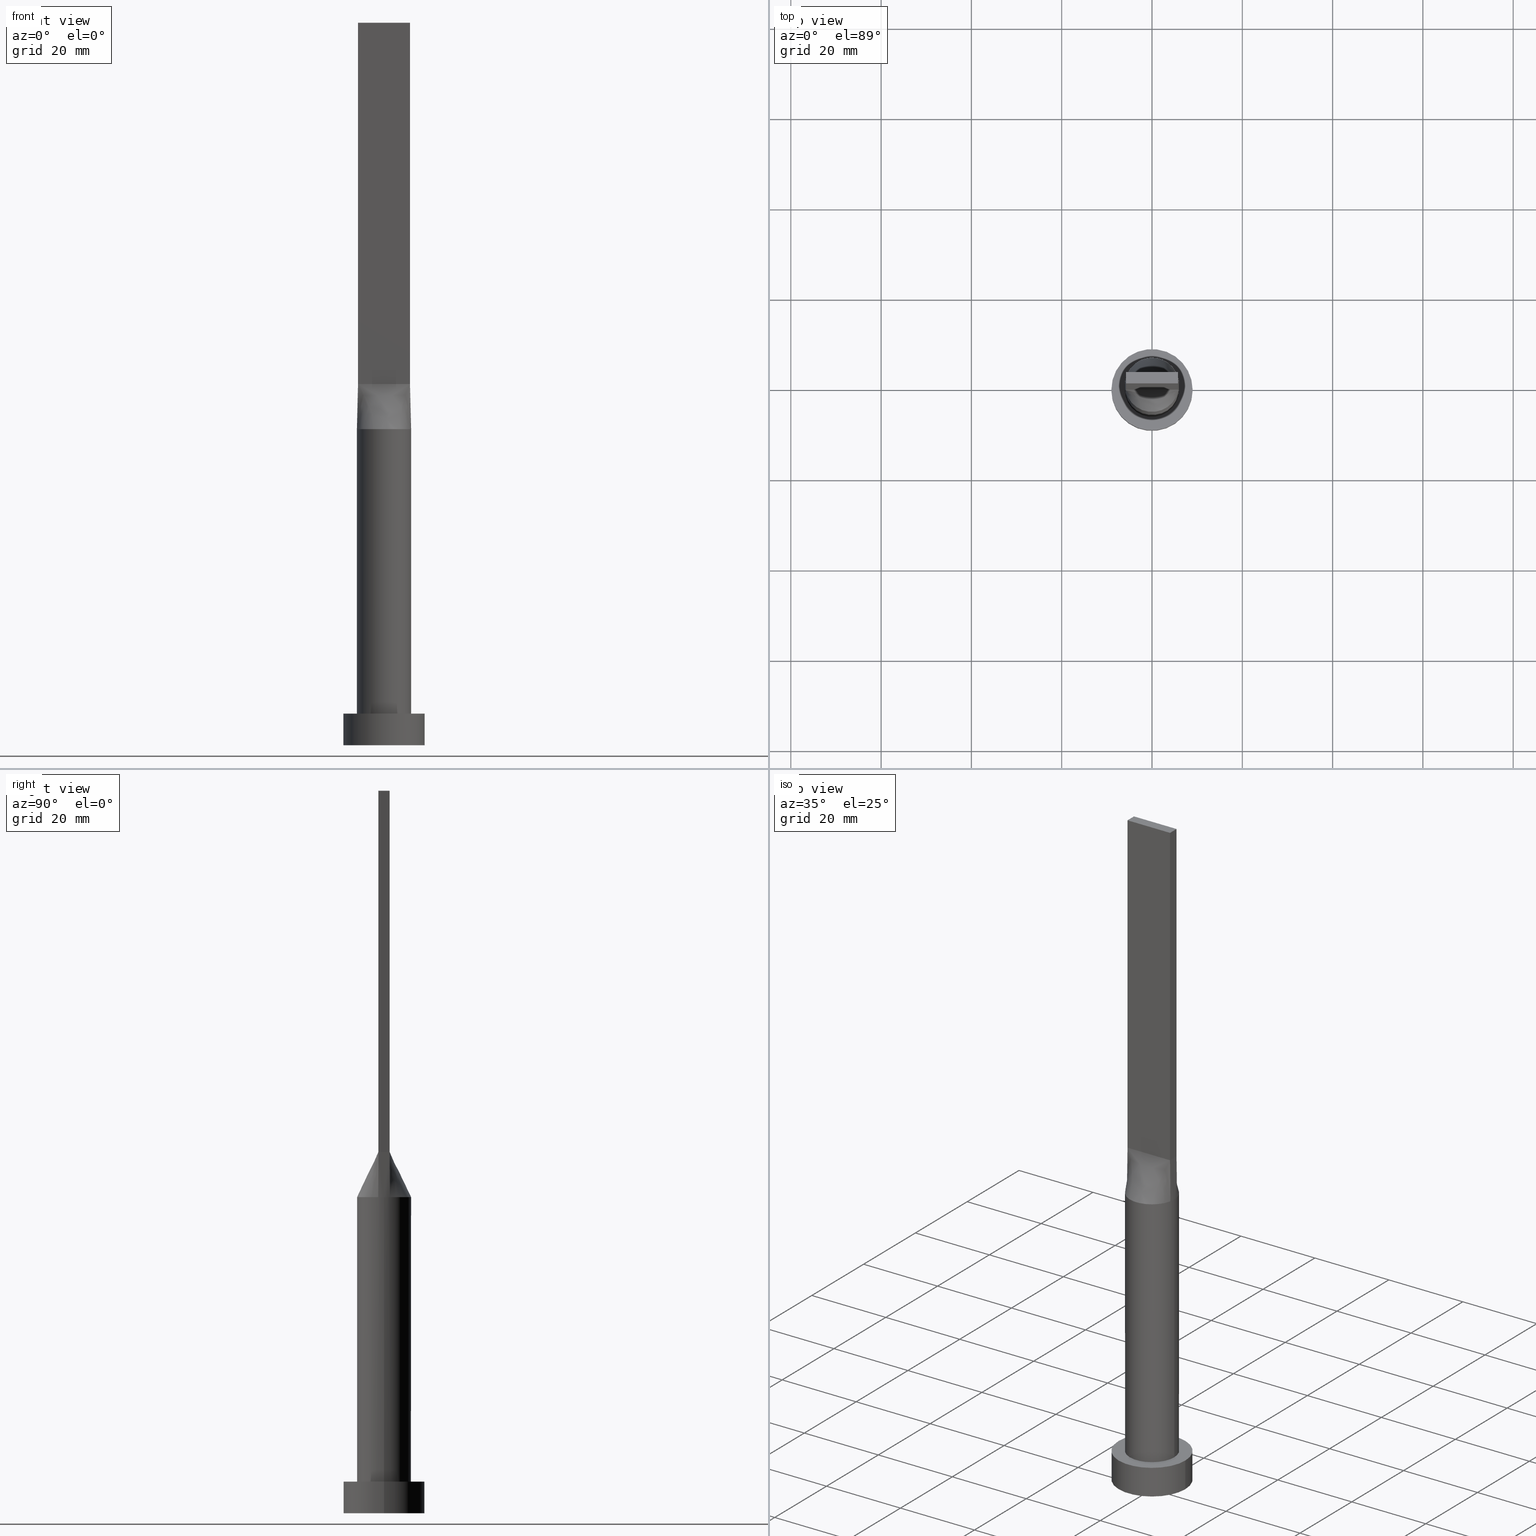
[diagram: canonical four-view strip — front | top / right | iso, engineering-drawing reading convention]
A machine part, canonical four-view strip (front | top / right | iso — engineering-drawing reading convention). The complete STEP part file that produces these views, byte-faithful:
ISO-10303-21;
HEADER;
FILE_DESCRIPTION (( 'STEP AP203' ),
    '1' );
FILE_NAME ('f8be.STEP',
    '2023-02-13T08:50:58',
    ( '' ),
    ( '' ),
    'SwSTEP 2.0',
    'SolidWorks 2019',
    '' );
FILE_SCHEMA (( 'CONFIG_CONTROL_DESIGN' ));
ENDSEC;

DATA;
#1 = EDGE_LOOP ( 'NONE', ( #382, #360, #352, #444, #464 ) ) ;
#2 = CARTESIAN_POINT ( 'NONE',  ( 1.197916666666666075, -1.249999999999999778, 79.99999999999998579 ) ) ;
#3 = CC_DESIGN_APPROVAL ( #32, ( #346 ) ) ;
#4 = FACE_OUTER_BOUND ( 'NONE', #390, .T. ) ;
#5 = CARTESIAN_POINT ( 'NONE',  ( -3.660567483996338911, -4.804269179125217448, 70.00000000000001421 ) ) ;
#6 = CC_DESIGN_DATE_AND_TIME_ASSIGNMENT ( #156, #281, ( #43 ) ) ;
#7 = DIRECTION ( 'NONE',  ( -0.01130506171853812650, -0.002457622112725682973, -0.9999330755971076456 ) ) ;
#8 = APPROVAL_DATE_TIME ( #377, #121 ) ;
#9 = PLANE ( 'NONE',  #463 ) ;
#10 = DIRECTION ( 'NONE',  ( 0.000000000000000000, -1.000000000000000000, 0.000000000000000000 ) ) ;
#11 = CALENDAR_DATE ( 2023, 13, 2 ) ;
#12 = DIRECTION ( 'NONE',  ( 0.01130506171853803803, -0.002457622112725964866, 0.9999330755971076456 ) ) ;
#13 = DIRECTION ( 'NONE',  ( 1.000000000000000000, 0.000000000000000000, 0.000000000000000000 ) ) ;
#14 = VECTOR ( 'NONE', #171, 1000.000000000000000 ) ;
#15 = DATE_AND_TIME ( #579, #265 ) ;
#16 = CARTESIAN_POINT ( 'NONE',  ( -1.966519853258819506, -5.681792876789066860, 70.00000000000002842 ) ) ;
#17 = ADVANCED_FACE ( 'NONE', ( #239 ), #372, .T. ) ;
#18 = ORIENTED_EDGE ( 'NONE', *, *, #231, .T. ) ;
#19 = DIRECTION ( 'NONE',  ( 0.000000000000000000, -0.000000000000000000, -1.000000000000000000 ) ) ;
#20 = PERSON_AND_ORGANIZATION ( #209, #553 ) ;
#21 = CARTESIAN_POINT ( 'NONE',  ( 5.750000000000000000, 1.250000000000000222, 80.00000000000000000 ) ) ;
#22 = ORIENTED_EDGE ( 'NONE', *, *, #450, .T. ) ;
#23 = CARTESIAN_POINT ( 'NONE',  ( -5.750000000000000000, 0.4166666666666722363, 79.99999999999998579 ) ) ;
#24 = CARTESIAN_POINT ( 'NONE',  ( -1.197916666666668739, 1.250000000000000222, 80.00000000000000000 ) ) ;
#25 = VERTEX_POINT ( 'NONE', #97 ) ;
#26 = DIRECTION ( 'NONE',  ( -0.000000000000000000, -0.000000000000000000, -1.000000000000000000 ) ) ;
#27 = CARTESIAN_POINT ( 'NONE',  ( 1.916666666666664076, 1.250000000000000222, 79.99999999999998579 ) ) ;
#28 = DIRECTION ( 'NONE',  ( 1.000000000000000000, 0.000000000000000000, 0.000000000000000000 ) ) ;
#29 = CARTESIAN_POINT ( 'NONE',  ( 5.863058183536806744, 1.274577865986262104, 70.00000000000000000 ) ) ;
#30 = VERTEX_POINT ( 'NONE', #105 ) ;
#31 = DIRECTION ( 'NONE',  ( -1.000000000000000000, 5.656706986880892860E-17, 0.000000000000000000 ) ) ;
#32 = APPROVAL ( #160, 'NEUR�EN�' ) ;
#33 = CARTESIAN_POINT ( 'NONE',  ( -0.2395833333333362847, 1.250000000000000222, 80.00000000000000000 ) ) ;
#34 = EDGE_LOOP ( 'NONE', ( #143, #356 ) ) ;
#35 = CARTESIAN_POINT ( 'NONE',  ( 5.750000000000000000, -1.249999999999999778, 160.0000000000000000 ) ) ;
#36 = VECTOR ( 'NONE', #10, 1000.000000000000000 ) ;
#37 = CARTESIAN_POINT ( 'NONE',  ( 3.660567483996337579, 4.804269179125218336, 70.00000000000000000 ) ) ;
#38 = CIRCLE ( 'NONE', #86, 6.000000000000000888 ) ;
#39 = VERTEX_POINT ( 'NONE', #277 ) ;
#40 = EDGE_CURVE ( 'NONE', #205, #430, #507, .T. ) ;
#41 = CARTESIAN_POINT ( 'NONE',  ( 0.000000000000000000, 0.000000000000000000, 7.000000000000000000 ) ) ;
#42 = DIRECTION ( 'NONE',  ( -0.000000000000000000, -0.000000000000000000, -1.000000000000000000 ) ) ;
#43 = PRODUCT_DEFINITION ( 'NEZN�M�', '', #443, #92 ) ;
#44 = ORIENTED_EDGE ( 'NONE', *, *, #118, .T. ) ;
#45 =( NAMED_UNIT ( * ) SI_UNIT ( $, .STERADIAN. ) SOLID_ANGLE_UNIT ( ) );
#46 = DIRECTION ( 'NONE',  ( -1.000000000000000000, 0.000000000000000000, 0.000000000000000000 ) ) ;
#47 = EDGE_LOOP ( 'NONE', ( #166, #367, #440, #488 ) ) ;
#48 = EDGE_CURVE ( 'NONE', #227, #479, #234, .T. ) ;
#49 = LINE ( 'NONE', #354, #101 ) ;
#50 = ORIENTED_EDGE ( 'NONE', *, *, #450, .F. ) ;
#51 = VECTOR ( 'NONE', #546, 1000.000000000000114 ) ;
#52 = CARTESIAN_POINT ( 'NONE',  ( 0.8058840496048923496, -5.959001506938069070, 70.00000000000000000 ) ) ;
#53 = DIRECTION ( 'NONE',  ( 1.000000000000000000, 0.000000000000000000, 0.000000000000000000 ) ) ;
#54 = VECTOR ( 'NONE', #258, 1000.000000000000000 ) ;
#55 = COORDINATED_UNIVERSAL_TIME_OFFSET ( 1, 0, .AHEAD. ) ;
#56 = CARTESIAN_POINT ( 'NONE',  ( 3.660567483996338023, -4.804269179125219225, 70.00000000000001421 ) ) ;
#57 = FACE_OUTER_BOUND ( 'NONE', #435, .T. ) ;
#58 = CARTESIAN_POINT ( 'NONE',  ( 0.000000000000000000, 0.000000000000000000, 0.000000000000000000 ) ) ;
#59 = CARTESIAN_POINT ( 'NONE',  ( 1.587717880441006368, -5.799853445840308375, 69.99999999999998579 ) ) ;
#60 = CARTESIAN_POINT ( 'NONE',  ( 6.000000000000000888, -0.4297636735037126954, 69.99999999999998579 ) ) ;
#61 = EDGE_CURVE ( 'NONE', #340, #577, #466, .T. ) ;
#62 = CARTESIAN_POINT ( 'NONE',  ( 0.4029827085191214908, -6.000000000000000888, 70.00000000000000000 ) ) ;
#63 = FACE_OUTER_BOUND ( 'NONE', #414, .T. ) ;
#64 = COORDINATED_UNIVERSAL_TIME_OFFSET ( 1, 0, .AHEAD. ) ;
#65 = DIRECTION ( 'NONE',  ( 0.000000000000000000, 0.000000000000000000, 1.000000000000000000 ) ) ;
#66 = EDGE_LOOP ( 'NONE', ( #593, #77, #50, #461 ) ) ;
#67 = DIRECTION ( 'NONE',  ( 1.000000000000000000, 0.000000000000000000, -0.000000000000000000 ) ) ;
#68 = APPROVAL_DATE_TIME ( #284, #32 ) ;
#69 = FACE_OUTER_BOUND ( 'NONE', #473, .T. ) ;
#70 = ADVANCED_BREP_SHAPE_REPRESENTATION ( 'f8be', ( #321, #386 ), #484 ) ;
#71 = CARTESIAN_POINT ( 'NONE',  ( 1.587717880441007479, 5.799853445840305710, 69.99999999999998579 ) ) ;
#72 = CARTESIAN_POINT ( 'NONE',  ( 9.000000000000000000, 1.102182119232617714E-15, 7.000000000000000000 ) ) ;
#73 = CARTESIAN_POINT ( 'NONE',  ( 5.586898165904734093, 2.266054396544147309, 70.00000000000000000 ) ) ;
#74 = ORIENTED_EDGE ( 'NONE', *, *, #308, .F. ) ;
#75 = LINE ( 'NONE', #72, #54 ) ;
#76 = DIRECTION ( 'NONE',  ( 0.000000000000000000, -1.000000000000000000, 0.000000000000000000 ) ) ;
#77 = ORIENTED_EDGE ( 'NONE', *, *, #48, .T. ) ;
#78 = CARTESIAN_POINT ( 'NONE',  ( 5.750000000000000000, -1.249999999999999778, 160.0000000000000000 ) ) ;
#79 = LINE ( 'NONE', #261, #413 ) ;
#80 = ADVANCED_FACE ( 'NONE', ( #373 ), #9, .F. ) ;
#81 = AXIS2_PLACEMENT_3D ( 'NONE', #172, #126, #342 ) ;
#82 = CARTESIAN_POINT ( 'NONE',  ( -5.750000000000000000, 1.250000000000000222, 160.0000000000000000 ) ) ;
#83 = EDGE_CURVE ( 'NONE', #558, #447, #184, .T. ) ;
#84 = B_SPLINE_CURVE_WITH_KNOTS ( 'NONE', 3,
 ( #454, #469, #307, #395, #185, #37, #136, #511, #547, #85, #589, #176, #598, #224, #549, #351, #319, #266, #347, #409, #401, #130 ),
 .UNSPECIFIED., .F., .F.,
 ( 4, 2, 2, 2, 2, 2, 2, 2, 2, 2, 4 ),
 ( 0.000000000000000000, 0.1249999999999999722, 0.2499999999999999445, 0.3749999999999999445, 0.4374999999999999445, 0.4999999999999998890, 0.5624999999999998890, 0.6249999999999998890, 0.7499999999999997780, 0.8749999999999998890, 1.000000000000000000 ),
 .UNSPECIFIED. ) ;
#85 = CARTESIAN_POINT ( 'NONE',  ( 0.8058840496048939039, 5.959001506938069070, 70.00000000000001421 ) ) ;
#86 = AXIS2_PLACEMENT_3D ( 'NONE', #591, #343, #28 ) ;
#87 = ORIENTED_EDGE ( 'NONE', *, *, #557, .T. ) ;
#88 = PLANE ( 'NONE',  #599 ) ;
#89 = ORIENTED_EDGE ( 'NONE', *, *, #534, .F. ) ;
#90 = ADVANCED_FACE ( 'NONE', ( #538 ), #165, .T. ) ;
#91 = CARTESIAN_POINT ( 'NONE',  ( -9.000000000000000000, 0.000000000000000000, 7.000000000000000000 ) ) ;
#92 = DESIGN_CONTEXT ( 'detailed design', #138, 'design' ) ;
#93 = ORIENTED_EDGE ( 'NONE', *, *, #231, .F. ) ;
#94 = ADVANCED_FACE ( 'NONE', ( #69 ), #330, .T. ) ;
#95 = AXIS2_PLACEMENT_3D ( 'NONE', #149, #485, #109 ) ;
#96 = CARTESIAN_POINT ( 'NONE',  ( -0.9583333333333331483, -1.249999999999999334, 79.99999999999998579 ) ) ;
#97 = CARTESIAN_POINT ( 'NONE',  ( 6.000000000000000888, 6.923844231069229210E-17, 70.00000000000000000 ) ) ;
#98 = CARTESIAN_POINT ( 'NONE',  ( 5.863058183536806744, 1.274577865986262326, 70.00000000000000000 ) ) ;
#99 = VECTOR ( 'NONE', #42, 1000.000000000000000 ) ;
#100 = CARTESIAN_POINT ( 'NONE',  ( -5.038190104264876013, -3.311355329404291670, 70.00000000000002842 ) ) ;
#101 = VECTOR ( 'NONE', #552, 1000.000000000000000 ) ;
#102 = ORIENTED_EDGE ( 'NONE', *, *, #61, .T. ) ;
#103 = CARTESIAN_POINT ( 'NONE',  ( 5.863058183536806744, -1.274577865986263436, 70.00000000000000000 ) ) ;
#104 = COORDINATED_UNIVERSAL_TIME_OFFSET ( 1, 0, .AHEAD. ) ;
#105 = CARTESIAN_POINT ( 'NONE',  ( 5.750000000000000000, 1.250000000000000222, 80.00000000000000000 ) ) ;
#106 = CARTESIAN_POINT ( 'NONE',  ( 5.750000000000000000, -0.8333333333333317050, 79.99999999999998579 ) ) ;
#107 = EDGE_CURVE ( 'NONE', #430, #205, #252, .T. ) ;
#108 = CARTESIAN_POINT ( 'NONE',  ( -1.197916666666666075, -1.249999999999999334, 79.99999999999998579 ) ) ;
#109 = DIRECTION ( 'NONE',  ( 1.000000000000000000, 0.000000000000000000, 0.000000000000000000 ) ) ;
#110 = APPROVAL_STATUS ( 'not_yet_approved' ) ;
#111 = CLOSED_SHELL ( 'NONE', ( #273, #129, #467, #517, #80, #94, #17, #415, #439, #90, #329, #475, #515, #255, #375 ) ) ;
#112 = CARTESIAN_POINT ( 'NONE',  ( 4.659826596530313836, 3.842755878357678068, 70.00000000000001421 ) ) ;
#113 = CARTESIAN_POINT ( 'NONE',  ( -5.750000000000000000, 1.250000000000000222, 80.00000000000000000 ) ) ;
#114 = DATE_TIME_ROLE ( 'classification_date' ) ;
#115 = CARTESIAN_POINT ( 'NONE',  ( -1.916666666666668073, 1.250000000000000222, 80.00000000000000000 ) ) ;
#116 = ORIENTED_EDGE ( 'NONE', *, *, #107, .T. ) ;
#117 = CARTESIAN_POINT ( 'NONE',  ( 9.000000000000000000, 1.102182119232617714E-15, 0.000000000000000000 ) ) ;
#118 = EDGE_CURVE ( 'NONE', #479, #597, #204, .T. ) ;
#119 = CARTESIAN_POINT ( 'NONE',  ( -3.354166666666666963, 1.250000000000000222, 79.99999999999998579 ) ) ;
#120 = DIRECTION ( 'NONE',  ( -1.000000000000000000, 0.000000000000000000, 0.000000000000000000 ) ) ;
#121 = APPROVAL ( #110, 'NEUR�EN�' ) ;
#122 = CARTESIAN_POINT ( 'NONE',  ( 0.9583333333333305948, 1.250000000000000222, 79.99999999999998579 ) ) ;
#123 = ORIENTED_EDGE ( 'NONE', *, *, #288, .F. ) ;
#124 = CARTESIAN_POINT ( 'NONE',  ( 0.000000000000000000, 0.000000000000000000, 0.000000000000000000 ) ) ;
#125 = LOCAL_TIME ( 9, 50, 58.00000000000000000, #323 ) ;
#126 = DIRECTION ( 'NONE',  ( -0.000000000000000000, -0.000000000000000000, -1.000000000000000000 ) ) ;
#127 = ORIENTED_EDGE ( 'NONE', *, *, #83, .F. ) ;
#128 = DIRECTION ( 'NONE',  ( 1.000000000000000000, -9.769962616701377556E-15, 0.000000000000000000 ) ) ;
#129 = ADVANCED_FACE ( 'NONE', ( #161 ), #530, .T. ) ;
#130 = CARTESIAN_POINT ( 'NONE',  ( -5.863058287509749888, 1.274577880478287017, 70.00000000000000000 ) ) ;
#131 = ORIENTED_EDGE ( 'NONE', *, *, #574, .T. ) ;
#132 = CARTESIAN_POINT ( 'NONE',  ( 5.863058287509796074, -1.274577880478293901, 70.00000000000000000 ) ) ;
#133 = CARTESIAN_POINT ( 'NONE',  ( -6.000000000000000888, -3.688698462745542764E-16, 70.00000000000000000 ) ) ;
#134 = VERTEX_POINT ( 'NONE', #98 ) ;
#135 = FACE_OUTER_BOUND ( 'NONE', #402, .T. ) ;
#136 = CARTESIAN_POINT ( 'NONE',  ( 3.037647739454305995, 5.231880992812856235, 70.00000000000001421 ) ) ;
#137 = APPROVAL_PERSON_ORGANIZATION ( #20, #594, #248 ) ;
#138 = APPLICATION_CONTEXT ( 'configuration controlled 3d designs of mechanical parts and assemblies' ) ;
#139 = APPLICATION_PROTOCOL_DEFINITION ( 'international standard', 'config_control_design', 1994, #505 ) ;
#140 = CARTESIAN_POINT ( 'NONE',  ( 5.750000000000000000, -1.249999999999999778, 160.0000000000000000 ) ) ;
#141 = ORIENTED_EDGE ( 'NONE', *, *, #308, .T. ) ;
#142 = CC_DESIGN_PERSON_AND_ORGANIZATION_ASSIGNMENT ( #481, #432, ( #443 ) ) ;
#143 = ORIENTED_EDGE ( 'NONE', *, *, #424, .F. ) ;
#144 = CARTESIAN_POINT ( 'NONE',  ( 3.833333333333331705, -1.249999999999999778, 79.99999999999998579 ) ) ;
#145 = AXIS2_PLACEMENT_3D ( 'NONE', #306, #341, #31 ) ;
#146 = EDGE_CURVE ( 'NONE', #600, #295, #508, .T. ) ;
#147 = CARTESIAN_POINT ( 'NONE',  ( 5.586898165904734093, -2.266054396544146865, 70.00000000000001421 ) ) ;
#148 = CARTESIAN_POINT ( 'NONE',  ( 1.966519853258817729, -5.681792876789067748, 70.00000000000002842 ) ) ;
#149 = CARTESIAN_POINT ( 'NONE',  ( 0.000000000000000000, 0.000000000000000000, 70.00000000000000000 ) ) ;
#150 = DATE_AND_TIME ( #197, #125 ) ;
#151 = CARTESIAN_POINT ( 'NONE',  ( -5.750000000000000000, -1.249999999999999112, 80.00000000000000000 ) ) ;
#152 = AXIS2_PLACEMENT_3D ( 'NONE', #235, #419, #19 ) ;
#153 = EDGE_CURVE ( 'NONE', #134, #227, #84, .T. ) ;
#154 = LOCAL_TIME ( 9, 50, 58.00000000000000000, #64 ) ;
#155 = CARTESIAN_POINT ( 'NONE',  ( -5.806529091768402928, -1.262288932993130386, 75.00000000000001421 ) ) ;
#156 = DATE_AND_TIME ( #524, #580 ) ;
#157 = EDGE_CURVE ( 'NONE', #295, #30, #305, .T. ) ;
#158 = CARTESIAN_POINT ( 'NONE',  ( -1.587717880441008589, -5.799853445840304822, 70.00000000000000000 ) ) ;
#159 = PLANE ( 'NONE',  #152 ) ;
#160 = APPROVAL_STATUS ( 'not_yet_approved' ) ;
#161 = FACE_OUTER_BOUND ( 'NONE', #47, .T. ) ;
#162 = CARTESIAN_POINT ( 'NONE',  ( 5.750000000000000000, 0.4166666666666690721, 79.99999999999998579 ) ) ;
#163 = VECTOR ( 'NONE', #76, 1000.000000000000000 ) ;
#164 = CARTESIAN_POINT ( 'NONE',  ( -4.791666666666666963, 1.250000000000000222, 79.99999999999998579 ) ) ;
#165 = B_SPLINE_SURFACE_WITH_KNOTS ( 'NONE', 3, 1, ( 
 ( #29, #21 ),
 ( #442, #289 ),
 ( #73, #576 ),
 ( #446, #491 ),
 ( #112, #335 ),
 ( #212, #301 ),
 ( #392, #27 ),
 ( #169, #381 ),
 ( #71, #122 ),
 ( #535, #249 ),
 ( #495, #438 ),
 ( #174, #33 ),
 ( #389, #219 ),
 ( #385, #583 ),
 ( #501, #24 ),
 ( #253, #115 ),
 ( #339, #259 ),
 ( #587, #119 ),
 ( #256, #208 ),
 ( #572, #164 ),
 ( #344, #544 ),
 ( #434, #294 ) ),
 .UNSPECIFIED., .F., .F., .F.,
 ( 4, 2, 2, 2, 2, 2, 2, 2, 2, 2, 4 ),
 ( 2, 2 ),
 ( 0.000000000000000000, 0.1249999999999999722, 0.2499999999999999445, 0.3749999999999999445, 0.4374999999999999445, 0.4999999999999998890, 0.5624999999999998890, 0.6249999999999998890, 0.7499999999999997780, 0.8749999999999998890, 1.000000000000000000 ),
 ( 0.000000000000000000, 1.000000000000000000 ),
 .UNSPECIFIED. ) ;
#166 = ORIENTED_EDGE ( 'NONE', *, *, #40, .F. ) ;
#167 = CIRCLE ( 'NONE', #324, 6.000000000000000888 ) ;
#168 = CARTESIAN_POINT ( 'NONE',  ( 5.750000000000000000, -1.249999999999999778, 80.00000000000000000 ) ) ;
#169 = CARTESIAN_POINT ( 'NONE',  ( 1.966519853258819062, 5.681792876789066860, 70.00000000000000000 ) ) ;
#170 = ORIENTED_EDGE ( 'NONE', *, *, #194, .F. ) ;
#171 = DIRECTION ( 'NONE',  ( -1.000000000000000000, -0.000000000000000000, -0.000000000000000000 ) ) ;
#172 = CARTESIAN_POINT ( 'NONE',  ( 0.000000000000000000, 0.000000000000000000, 70.00000000000000000 ) ) ;
#173 = ORIENTED_EDGE ( 'NONE', *, *, #398, .T. ) ;
#174 = CARTESIAN_POINT ( 'NONE',  ( -0.4029827085191223790, 5.999999999999998224, 70.00000000000000000 ) ) ;
#175 = EDGE_CURVE ( 'NONE', #39, #30, #79, .T. ) ;
#176 = CARTESIAN_POINT ( 'NONE',  ( -0.4029827085191223790, 5.999999999999998224, 70.00000000000000000 ) ) ;
#177 = EDGE_LOOP ( 'NONE', ( #44, #315, #74, #250 ) ) ;
#178 = DIRECTION ( 'NONE',  ( 1.000000000000000000, 0.000000000000000000, 0.000000000000000000 ) ) ;
#179 = LINE ( 'NONE', #140, #99 ) ;
#180 = ORIENTED_EDGE ( 'NONE', *, *, #314, .F. ) ;
#181 = CARTESIAN_POINT ( 'NONE',  ( -6.000000000000000888, 0.000000000000000000, 7.000000000000000000 ) ) ;
#182 = DIRECTION ( 'NONE',  ( -0.000000000000000000, -0.000000000000000000, -1.000000000000000000 ) ) ;
#183 = ORIENTED_EDGE ( 'NONE', *, *, #83, .T. ) ;
#184 = CIRCLE ( 'NONE', #531, 6.000000000000000888 ) ;
#185 = CARTESIAN_POINT ( 'NONE',  ( 4.659826596530313836, 3.842755878357678068, 70.00000000000001421 ) ) ;
#186 = ORIENTED_EDGE ( 'NONE', *, *, #40, .T. ) ;
#187 = EDGE_CURVE ( 'NONE', #577, #295, #179, .T. ) ;
#188 = PRODUCT_DEFINITION_SHAPE ( 'NONE', 'NONE',  #43 ) ;
#189 = CARTESIAN_POINT ( 'NONE',  ( -3.354166666666666963, -1.249999999999999112, 79.99999999999998579 ) ) ;
#190 = FACE_OUTER_BOUND ( 'NONE', #269, .T. ) ;
#191 = CARTESIAN_POINT ( 'NONE',  ( 4.659826596530312948, -3.842755878357678512, 69.99999999999998579 ) ) ;
#192 = LINE ( 'NONE', #564, #496 ) ;
#193 = PERSON_AND_ORGANIZATION_ROLE ( 'creator' ) ;
#194 = EDGE_CURVE ( 'NONE', #597, #295, #462, .T. ) ;
#195 = CARTESIAN_POINT ( 'NONE',  ( -4.659826596530313836, -3.842755878357677179, 70.00000000000000000 ) ) ;
#196 = DIRECTION ( 'NONE',  ( 0.000000000000000000, 0.000000000000000000, 1.000000000000000000 ) ) ;
#197 = CALENDAR_DATE ( 2023, 13, 2 ) ;
#198 = CARTESIAN_POINT ( 'NONE',  ( 5.759267569818393717, -1.752014689090956256, 70.00000000000000000 ) ) ;
#199 = CARTESIAN_POINT ( 'NONE',  ( -9.000000000000000000, 0.000000000000000000, 7.000000000000000000 ) ) ;
#200 = CARTESIAN_POINT ( 'NONE',  ( -0.2395833333333338699, -1.249999999999999556, 79.99999999999998579 ) ) ;
#201 = VERTEX_POINT ( 'NONE', #133 ) ;
#202 = LINE ( 'NONE', #537, #36 ) ;
#203 = PERSON_AND_ORGANIZATION_ROLE ( 'design_owner' ) ;
#204 = LINE ( 'NONE', #303, #163 ) ;
#205 = VERTEX_POINT ( 'NONE', #226 ) ;
#206 = CARTESIAN_POINT ( 'NONE',  ( -6.000000000000000888, -0.4297636735037110300, 69.99999999999998579 ) ) ;
#207 = COORDINATED_UNIVERSAL_TIME_OFFSET ( 1, 0, .AHEAD. ) ;
#208 = CARTESIAN_POINT ( 'NONE',  ( -3.833333333333333481, 1.250000000000000222, 79.99999999999998579 ) ) ;
#209 = PERSON ( 'NEUR�EN�', 'NEUR�EN�', 'NEUR�EN�', ('NEUR�EN�'), ('NEUR�EN�'), ('NEUR�EN�') ) ;
#210 = CARTESIAN_POINT ( 'NONE',  ( -5.953310891118033688, -0.8594154111126154350, 70.00000000000000000 ) ) ;
#211 = LOCAL_TIME ( 9, 50, 58.00000000000000000, #55 ) ;
#212 = CARTESIAN_POINT ( 'NONE',  ( 3.660567483996337579, 4.804269179125218336, 70.00000000000000000 ) ) ;
#213 = ORIENTED_EDGE ( 'NONE', *, *, #157, .T. ) ;
#214 = CARTESIAN_POINT ( 'NONE',  ( 0.000000000000000000, 0.000000000000000000, 7.000000000000000000 ) ) ;
#215 = DIRECTION ( 'NONE',  ( 0.000000000000000000, 0.000000000000000000, 1.000000000000000000 ) ) ;
#216 = EDGE_CURVE ( 'NONE', #430, #267, #404, .T. ) ;
#217 = ORIENTED_EDGE ( 'NONE', *, *, #584, .F. ) ;
#218 = CARTESIAN_POINT ( 'NONE',  ( 6.000000000000000888, 7.347880794884120722E-16, 7.000000000000000000 ) ) ;
#219 = CARTESIAN_POINT ( 'NONE',  ( -0.4791666666666691832, 1.250000000000000222, 80.00000000000000000 ) ) ;
#220 = ORIENTED_EDGE ( 'NONE', *, *, #194, .T. ) ;
#221 = PLANE ( 'NONE',  #408 ) ;
#222 = VECTOR ( 'NONE', #478, 1000.000000000000000 ) ;
#223 = APPROVAL_PERSON_ORGANIZATION ( #476, #121, #575 ) ;
#224 = CARTESIAN_POINT ( 'NONE',  ( -1.587717880441007035, 5.799853445840308375, 69.99999999999998579 ) ) ;
#225 = CARTESIAN_POINT ( 'NONE',  ( -5.750000000000000000, -0.8333333333333292625, 79.99999999999998579 ) ) ;
#226 = CARTESIAN_POINT ( 'NONE',  ( 9.000000000000000000, 1.102182119232617714E-15, 7.000000000000000000 ) ) ;
#227 = VERTEX_POINT ( 'NONE', #311 ) ;
#228 = CYLINDRICAL_SURFACE ( 'NONE', #416, 6.000000000000000888 ) ;
#229 = ORIENTED_EDGE ( 'NONE', *, *, #187, .T. ) ;
#230 = ORIENTED_EDGE ( 'NONE', *, *, #542, .F. ) ;
#231 = EDGE_CURVE ( 'NONE', #201, #447, #460, .T. ) ;
#232 = CARTESIAN_POINT ( 'NONE',  ( -5.270833333333333925, -1.249999999999999112, 80.00000000000000000 ) ) ;
#233 = VECTOR ( 'NONE', #7, 1000.000000000000114 ) ;
#234 = LINE ( 'NONE', #425, #514 ) ;
#235 = CARTESIAN_POINT ( 'NONE',  ( 5.750000000000000000, 1.250000000000000222, 160.0000000000000000 ) ) ;
#236 = DIRECTION ( 'NONE',  ( 0.000000000000000000, 0.000000000000000000, 1.000000000000000000 ) ) ;
#237 = DIRECTION ( 'NONE',  ( 0.000000000000000000, 0.000000000000000000, 1.000000000000000000 ) ) ;
#238 = CARTESIAN_POINT ( 'NONE',  ( 5.953310891118033688, 0.8594154111126159901, 70.00000000000000000 ) ) ;
#239 = FACE_OUTER_BOUND ( 'NONE', #242, .T. ) ;
#240 = CARTESIAN_POINT ( 'NONE',  ( 5.750000000000000000, 0.8333333333333350357, 79.99999999999998579 ) ) ;
#241 = CARTESIAN_POINT ( 'NONE',  ( -4.791666666666666963, -1.249999999999999112, 80.00000000000000000 ) ) ;
#242 = EDGE_LOOP ( 'NONE', ( #337, #412, #170, #274 ) ) ;
#243 = PLANE ( 'NONE',  #316 ) ;
#244 = PERSON_AND_ORGANIZATION ( #209, #553 ) ;
#245 = DIRECTION ( 'NONE',  ( 1.000000000000000000, 0.000000000000000000, 0.000000000000000000 ) ) ;
#246 = EDGE_CURVE ( 'NONE', #340, #597, #49, .T. ) ;
#247 = CARTESIAN_POINT ( 'NONE',  ( -5.750000000000000000, 0.8333333333333370341, 79.99999999999998579 ) ) ;
#248 = APPROVAL_ROLE ( '' ) ;
#249 = CARTESIAN_POINT ( 'NONE',  ( 0.4791666666666637986, 1.250000000000000222, 79.99999999999998579 ) ) ;
#250 = ORIENTED_EDGE ( 'NONE', *, *, #601, .T. ) ;
#251 = DIRECTION ( 'NONE',  ( 1.000000000000000000, 0.000000000000000000, 0.000000000000000000 ) ) ;
#252 = CIRCLE ( 'NONE', #588, 9.000000000000000000 ) ;
#253 = CARTESIAN_POINT ( 'NONE',  ( -3.037647739454304663, 5.231880992812857123, 70.00000000000002842 ) ) ;
#254 = CARTESIAN_POINT ( 'NONE',  ( 0.000000000000000000, 0.000000000000000000, 70.00000000000000000 ) ) ;
#255 = ADVANCED_FACE ( 'NONE', ( #190 ), #88, .F. ) ;
#256 = CARTESIAN_POINT ( 'NONE',  ( -5.038190104264874236, 3.311355329404293446, 70.00000000000001421 ) ) ;
#257 = EDGE_LOOP ( 'NONE', ( #89, #459, #556, #263 ) ) ;
#258 = DIRECTION ( 'NONE',  ( -0.000000000000000000, -0.000000000000000000, -1.000000000000000000 ) ) ;
#259 = CARTESIAN_POINT ( 'NONE',  ( -2.395833333333333925, 1.250000000000000222, 79.99999999999998579 ) ) ;
#260 = CARTESIAN_POINT ( 'NONE',  ( -5.750000000000000000, -0.4166666666666609675, 79.99999999999998579 ) ) ;
#261 = CARTESIAN_POINT ( 'NONE',  ( 5.750000000000000000, 1.250000000000000222, 160.0000000000000000 ) ) ;
#262 = VECTOR ( 'NONE', #366, 1000.000000000000000 ) ;
#263 = ORIENTED_EDGE ( 'NONE', *, *, #424, .T. ) ;
#264 = FACE_OUTER_BOUND ( 'NONE', #177, .T. ) ;
#265 = LOCAL_TIME ( 9, 50, 58.00000000000000000, #104 ) ;
#266 = CARTESIAN_POINT ( 'NONE',  ( -4.659826596530312948, 3.842755878357679844, 69.99999999999998579 ) ) ;
#267 = VERTEX_POINT ( 'NONE', #554 ) ;
#268 = CARTESIAN_POINT ( 'NONE',  ( 5.750000000000000000, -1.249999999999999778, 160.0000000000000000 ) ) ;
#269 = EDGE_LOOP ( 'NONE', ( #213, #362, #396, #229 ) ) ;
#270 = CARTESIAN_POINT ( 'NONE',  ( -6.000000000000000888, 0.000000000000000000, 70.00000000000000000 ) ) ;
#271 = ORIENTED_EDGE ( 'NONE', *, *, #246, .T. ) ;
#272 = AXIS2_PLACEMENT_3D ( 'NONE', #483, #519, #365 ) ;
#273 = ADVANCED_FACE ( 'NONE', ( #4 ), #228, .T. ) ;
#274 = ORIENTED_EDGE ( 'NONE', *, *, #275, .T. ) ;
#275 = EDGE_CURVE ( 'NONE', #597, #393, #338, .T. ) ;
#276 = CARTESIAN_POINT ( 'NONE',  ( 3.354166666666665186, -1.249999999999999778, 79.99999999999998579 ) ) ;
#277 = CARTESIAN_POINT ( 'NONE',  ( 5.750000000000000000, 1.250000000000000222, 160.0000000000000000 ) ) ;
#278 = DIRECTION ( 'NONE',  ( -0.01130506171853803803, 0.002457622112726073286, 0.9999330755971076456 ) ) ;
#279 = CARTESIAN_POINT ( 'NONE',  ( -1.916666666666666075, -1.249999999999999334, 79.99999999999998579 ) ) ;
#280 = CARTESIAN_POINT ( 'NONE',  ( 5.750000000000000000, -0.4166666666666642427, 79.99999999999998579 ) ) ;
#281 = DATE_TIME_ROLE ( 'creation_date' ) ;
#282 = CARTESIAN_POINT ( 'NONE',  ( -0.8058840496048947921, -5.959001506938068182, 70.00000000000002842 ) ) ;
#283 = DIRECTION ( 'NONE',  ( 1.000000000000000000, 0.000000000000000000, 0.000000000000000000 ) ) ;
#284 = DATE_AND_TIME ( #486, #211 ) ;
#285 = CARTESIAN_POINT ( 'NONE',  ( -0.4791666666666669627, -1.249999999999999334, 79.99999999999998579 ) ) ;
#286 = CARTESIAN_POINT ( 'NONE',  ( 0.000000000000000000, 0.000000000000000000, 160.0000000000000000 ) ) ;
#287 = APPLICATION_PROTOCOL_DEFINITION ( 'international standard', 'config_control_design', 1994, #138 ) ;
#288 = EDGE_CURVE ( 'NONE', #201, #393, #167, .T. ) ;
#289 = CARTESIAN_POINT ( 'NONE',  ( 5.270833333333333037, 1.250000000000000222, 79.99999999999998579 ) ) ;
#290 = CC_DESIGN_APPROVAL ( #121, ( #443 ) ) ;
#291 = VECTOR ( 'NONE', #586, 1000.000000000000000 ) ;
#292 = CARTESIAN_POINT ( 'NONE',  ( -5.953310891118034576, 0.8594154111126165452, 70.00000000000001421 ) ) ;
#293 = PERSON_AND_ORGANIZATION ( #209, #553 ) ;
#294 = CARTESIAN_POINT ( 'NONE',  ( -5.750000000000000000, 1.250000000000000222, 80.00000000000000000 ) ) ;
#295 = VERTEX_POINT ( 'NONE', #168 ) ;
#296 = FACE_OUTER_BOUND ( 'NONE', #504, .T. ) ;
#297 = PRODUCT ( 'f8be', 'f8be', '', ( #384 ) ) ;
#298 = CARTESIAN_POINT ( 'NONE',  ( 0.000000000000000000, 0.000000000000000000, 7.000000000000000000 ) ) ;
#299 = DIRECTION ( 'NONE',  ( 0.000000000000000000, 0.000000000000000000, 1.000000000000000000 ) ) ;
#300 = VECTOR ( 'NONE', #562, 1000.000000000000000 ) ;
#301 = CARTESIAN_POINT ( 'NONE',  ( 2.395833333333330817, 1.250000000000000222, 79.99999999999998579 ) ) ;
#302 = FACE_BOUND ( 'NONE', #509, .T. ) ;
#303 = CARTESIAN_POINT ( 'NONE',  ( -5.750000000000000000, 1.250000000000000222, 80.00000000000000000 ) ) ;
#304 = CARTESIAN_POINT ( 'NONE',  ( -5.750000000000000000, -1.249999999999999334, 80.00000000000000000 ) ) ;
#305 = LINE ( 'NONE', #503, #355 ) ;
#306 = CARTESIAN_POINT ( 'NONE',  ( -5.750000000000000000, -1.249999999999999112, 160.0000000000000000 ) ) ;
#307 = CARTESIAN_POINT ( 'NONE',  ( 5.586898165904734093, 2.266054396544147309, 70.00000000000000000 ) ) ;
#308 = EDGE_CURVE ( 'NONE', #313, #340, #202, .T. ) ;
#309 = CARTESIAN_POINT ( 'NONE',  ( 5.806529091768402928, 1.262288932993131496, 75.00000000000001421 ) ) ;
#310 = CIRCLE ( 'NONE', #429, 9.000000000000000000 ) ;
#311 = CARTESIAN_POINT ( 'NONE',  ( -5.863058287509749888, 1.274577880478287017, 70.00000000000000000 ) ) ;
#312 = VERTEX_POINT ( 'NONE', #117 ) ;
#313 = VERTEX_POINT ( 'NONE', #528 ) ;
#314 = EDGE_CURVE ( 'NONE', #227, #201, #397, .T. ) ;
#315 = ORIENTED_EDGE ( 'NONE', *, *, #246, .F. ) ;
#316 = AXIS2_PLACEMENT_3D ( 'NONE', #286, #567, #67 ) ;
#317 = CARTESIAN_POINT ( 'NONE',  ( 5.863058183536805856, -1.274577865986266101, 70.00000000000000000 ) ) ;
#318 = CARTESIAN_POINT ( 'NONE',  ( -5.863058183536806744, -1.274577865986261438, 70.00000000000000000 ) ) ;
#319 = CARTESIAN_POINT ( 'NONE',  ( -3.660567483996338023, 4.804269179125219225, 70.00000000000001421 ) ) ;
#320 = CARTESIAN_POINT ( 'NONE',  ( 1.916666666666665408, -1.249999999999999778, 79.99999999999998579 ) ) ;
#321 = MANIFOLD_SOLID_BREP ( 'P�idat vysunut�m5', #111 ) ;
#322 = CARTESIAN_POINT ( 'NONE',  ( 5.750000000000000000, 1.250000000000000222, 160.0000000000000000 ) ) ;
#323 = COORDINATED_UNIVERSAL_TIME_OFFSET ( 1, 0, .AHEAD. ) ;
#324 = AXIS2_PLACEMENT_3D ( 'NONE', #371, #196, #578 ) ;
#325 = CARTESIAN_POINT ( 'NONE',  ( -5.586898165904734093, -2.266054396544145533, 70.00000000000001421 ) ) ;
#326 = DIRECTION ( 'NONE',  ( -1.000000000000000000, 0.000000000000000000, 0.000000000000000000 ) ) ;
#327 = ORIENTED_EDGE ( 'NONE', *, *, #146, .F. ) ;
#328 = CARTESIAN_POINT ( 'NONE',  ( 0.000000000000000000, 0.000000000000000000, 70.00000000000000000 ) ) ;
#329 = ADVANCED_FACE ( 'NONE', ( #296 ), #159, .F. ) ;
#330 = CYLINDRICAL_SURFACE ( 'NONE', #81, 6.000000000000000888 ) ;
#331 = CC_DESIGN_PERSON_AND_ORGANIZATION_ASSIGNMENT ( #529, #203, ( #297 ) ) ;
#332 = CARTESIAN_POINT ( 'NONE',  ( 5.863058183536806744, 1.274577865986262326, 70.00000000000000000 ) ) ;
#333 = VECTOR ( 'NONE', #278, 1000.000000000000114 ) ;
#334 = PERSON_AND_ORGANIZATION_ROLE ( 'classification_officer' ) ;
#335 = CARTESIAN_POINT ( 'NONE',  ( 3.354166666666665186, 1.250000000000000222, 79.99999999999998579 ) ) ;
#336 = VECTOR ( 'NONE', #445, 1000.000000000000000 ) ;
#337 = ORIENTED_EDGE ( 'NONE', *, *, #361, .T. ) ;
#338 = LINE ( 'NONE', #155, #233 ) ;
#339 = CARTESIAN_POINT ( 'NONE',  ( -3.660567483996338023, 4.804269179125219225, 70.00000000000001421 ) ) ;
#340 = VERTEX_POINT ( 'NONE', #383 ) ;
#341 = DIRECTION ( 'NONE',  ( 5.656706986880892860E-17, 1.000000000000000000, -0.000000000000000000 ) ) ;
#342 = DIRECTION ( 'NONE',  ( -1.000000000000000000, 0.000000000000000000, 0.000000000000000000 ) ) ;
#343 = DIRECTION ( 'NONE',  ( 0.000000000000000000, 0.000000000000000000, 1.000000000000000000 ) ) ;
#344 = CARTESIAN_POINT ( 'NONE',  ( -5.759267569818392829, 1.752014689090956256, 70.00000000000000000 ) ) ;
#345 = DIRECTION ( 'NONE',  ( 1.000000000000000000, 0.000000000000000000, -0.000000000000000000 ) ) ;
#346 = SECURITY_CLASSIFICATION ( '', '', #565 ) ;
#347 = CARTESIAN_POINT ( 'NONE',  ( -5.038190104264874236, 3.311355329404293446, 70.00000000000001421 ) ) ;
#348 = ORIENTED_EDGE ( 'NONE', *, *, #361, .F. ) ;
#349 = CARTESIAN_POINT ( 'NONE',  ( -5.750000000000000000, -1.249999999999999112, 80.00000000000000000 ) ) ;
#350 = EDGE_CURVE ( 'NONE', #25, #558, #192, .T. ) ;
#351 = CARTESIAN_POINT ( 'NONE',  ( -3.037647739454304663, 5.231880992812857123, 70.00000000000002842 ) ) ;
#352 = ORIENTED_EDGE ( 'NONE', *, *, #275, .F. ) ;
#353 = CARTESIAN_POINT ( 'NONE',  ( 0.000000000000000000, 0.000000000000000000, 7.000000000000000000 ) ) ;
#354 = CARTESIAN_POINT ( 'NONE',  ( -5.750000000000000000, -1.249999999999999112, 160.0000000000000000 ) ) ;
#355 = VECTOR ( 'NONE', #458, 1000.000000000000000 ) ;
#356 = ORIENTED_EDGE ( 'NONE', *, *, #500, .F. ) ;
#357 =( NAMED_UNIT ( * ) PLANE_ANGLE_UNIT ( ) SI_UNIT ( $, .RADIAN. ) );
#358 = VECTOR ( 'NONE', #596, 1000.000000000000000 ) ;
#359 = DIRECTION ( 'NONE',  ( 0.000000000000000000, 0.000000000000000000, 1.000000000000000000 ) ) ;
#360 = ORIENTED_EDGE ( 'NONE', *, *, #288, .T. ) ;
#361 = EDGE_CURVE ( 'NONE', #393, #600, #465, .T. ) ;
#362 = ORIENTED_EDGE ( 'NONE', *, *, #175, .F. ) ;
#363 = CARTESIAN_POINT ( 'NONE',  ( -0.4029827085191233227, -6.000000000000000000, 70.00000000000001421 ) ) ;
#364 = CC_DESIGN_PERSON_AND_ORGANIZATION_ASSIGNMENT ( #420, #427, ( #43 ) ) ;
#365 = DIRECTION ( 'NONE',  ( -1.000000000000000000, 0.000000000000000000, 0.000000000000000000 ) ) ;
#366 = DIRECTION ( 'NONE',  ( 1.000000000000000000, -5.656706986880892860E-17, 0.000000000000000000 ) ) ;
#367 = ORIENTED_EDGE ( 'NONE', *, *, #534, .T. ) ;
#368 = DIRECTION ( 'NONE',  ( -0.000000000000000000, -0.000000000000000000, -1.000000000000000000 ) ) ;
#369 = APPROVAL_ROLE ( '' ) ;
#370 = CARTESIAN_POINT ( 'NONE',  ( 5.750000000000000000, -1.249999999999999778, 80.00000000000000000 ) ) ;
#371 = CARTESIAN_POINT ( 'NONE',  ( 0.000000000000000000, 0.000000000000000000, 70.00000000000000000 ) ) ;
#372 = B_SPLINE_SURFACE_WITH_KNOTS ( 'NONE', 3, 1, ( 
 ( #318, #151 ),
 ( #566, #232 ),
 ( #325, #241 ),
 ( #100, #527 ),
 ( #195, #189 ),
 ( #5, #563 ),
 ( #428, #279 ),
 ( #16, #108 ),
 ( #158, #96 ),
 ( #282, #285 ),
 ( #363, #200 ),
 ( #62, #421 ),
 ( #52, #518 ),
 ( #59, #477 ),
 ( #148, #2 ),
 ( #525, #320 ),
 ( #56, #561 ),
 ( #191, #276 ),
 ( #378, #144 ),
 ( #147, #468 ),
 ( #198, #472 ),
 ( #317, #370 ) ),
 .UNSPECIFIED., .F., .F., .F.,
 ( 4, 2, 2, 2, 2, 2, 2, 2, 2, 2, 4 ),
 ( 2, 2 ),
 ( 0.000000000000000000, 0.1250000000000000278, 0.2500000000000000555, 0.3750000000000001110, 0.4375000000000000555, 0.5000000000000000000, 0.5625000000000000000, 0.6250000000000000000, 0.7499999999999998890, 0.8750000000000000000, 1.000000000000000000 ),
 ( 0.000000000000000000, 1.000000000000000000 ),
 .UNSPECIFIED. ) ;
#373 = FACE_OUTER_BOUND ( 'NONE', #34, .T. ) ;
#374 = AXIS2_PLACEMENT_3D ( 'NONE', #353, #26, #120 ) ;
#375 = ADVANCED_FACE ( 'NONE', ( #57 ), #243, .T. ) ;
#376 = FACE_OUTER_BOUND ( 'NONE', #1, .T. ) ;
#377 = DATE_AND_TIME ( #11, #154 ) ;
#378 = CARTESIAN_POINT ( 'NONE',  ( 5.038190104264874236, -3.311355329404293890, 70.00000000000002842 ) ) ;
#379 = CARTESIAN_POINT ( 'NONE',  ( 0.000000000000000000, 0.000000000000000000, 70.00000000000000000 ) ) ;
#380 = PERSON_AND_ORGANIZATION ( #209, #553 ) ;
#381 = CARTESIAN_POINT ( 'NONE',  ( 1.197916666666664076, 1.250000000000000222, 79.99999999999998579 ) ) ;
#382 = ORIENTED_EDGE ( 'NONE', *, *, #314, .T. ) ;
#383 = CARTESIAN_POINT ( 'NONE',  ( -5.750000000000000000, -1.249999999999999112, 160.0000000000000000 ) ) ;
#384 = MECHANICAL_CONTEXT ( 'NONE', #505, 'mechanical' ) ;
#385 = CARTESIAN_POINT ( 'NONE',  ( -1.587717880441007035, 5.799853445840308375, 69.99999999999998579 ) ) ;
#386 = AXIS2_PLACEMENT_3D ( 'NONE', #58, #236, #423 ) ;
#387 = ORIENTED_EDGE ( 'NONE', *, *, #350, .F. ) ;
#388 = PLANE ( 'NONE',  #568 ) ;
#389 = CARTESIAN_POINT ( 'NONE',  ( -0.8058840496048931268, 5.959001506938069070, 70.00000000000000000 ) ) ;
#390 = EDGE_LOOP ( 'NONE', ( #555, #536, #183, #93, #180, #521 ) ) ;
#391 = CARTESIAN_POINT ( 'NONE',  ( -5.750000000000000000, 1.250000000000000222, 160.0000000000000000 ) ) ;
#392 = CARTESIAN_POINT ( 'NONE',  ( 3.037647739454305995, 5.231880992812856235, 70.00000000000001421 ) ) ;
#393 = VERTEX_POINT ( 'NONE', #480 ) ;
#394 =( LENGTH_UNIT ( ) NAMED_UNIT ( * ) SI_UNIT ( .MILLI., .METRE. ) );
#395 = CARTESIAN_POINT ( 'NONE',  ( 5.038190104264874236, 3.311355329404293002, 70.00000000000004263 ) ) ;
#396 = ORIENTED_EDGE ( 'NONE', *, *, #545, .F. ) ;
#397 = CIRCLE ( 'NONE', #407, 6.000000000000000888 ) ;
#398 = EDGE_CURVE ( 'NONE', #39, #313, #522, .T. ) ;
#399 = CARTESIAN_POINT ( 'NONE',  ( -5.750000000000000000, 1.250000000000000222, 80.00000000000000000 ) ) ;
#400 = AXIS2_PLACEMENT_3D ( 'NONE', #214, #499, #178 ) ;
#401 = CARTESIAN_POINT ( 'NONE',  ( -5.759267569818392829, 1.752014689090956256, 70.00000000000000000 ) ) ;
#402 = EDGE_LOOP ( 'NONE', ( #220, #410, #492, #271 ) ) ;
#403 = PLANE ( 'NONE',  #145 ) ;
#404 = LINE ( 'NONE', #91, #358 ) ;
#405 = ORIENTED_EDGE ( 'NONE', *, *, #542, .T. ) ;
#406 = CARTESIAN_POINT ( 'NONE',  ( 5.806529091768402928, -1.262288932993132828, 75.00000000000001421 ) ) ;
#407 = AXIS2_PLACEMENT_3D ( 'NONE', #379, #489, #283 ) ;
#408 = AXIS2_PLACEMENT_3D ( 'NONE', #41, #299, #493 ) ;
#409 = CARTESIAN_POINT ( 'NONE',  ( -5.586898165904732316, 2.266054396544148197, 70.00000000000001421 ) ) ;
#410 = ORIENTED_EDGE ( 'NONE', *, *, #187, .F. ) ;
#411 = PRODUCT_RELATED_PRODUCT_CATEGORY ( 'detail', '', ( #297 ) ) ;
#412 = ORIENTED_EDGE ( 'NONE', *, *, #146, .T. ) ;
#413 = VECTOR ( 'NONE', #592, 1000.000000000000000 ) ;
#414 = EDGE_LOOP ( 'NONE', ( #405, #131, #87, #590, #327 ) ) ;
#415 = ADVANCED_FACE ( 'NONE', ( #63 ), #585, .T. ) ;
#416 = AXIS2_PLACEMENT_3D ( 'NONE', #328, #368, #326 ) ;
#417 = CIRCLE ( 'NONE', #497, 6.000000000000000888 ) ;
#418 = CARTESIAN_POINT ( 'NONE',  ( -5.750000000000000000, -1.249999999999999112, 160.0000000000000000 ) ) ;
#419 = DIRECTION ( 'NONE',  ( 0.000000000000000000, -1.000000000000000000, 0.000000000000000000 ) ) ;
#420 = PERSON_AND_ORGANIZATION ( #209, #553 ) ;
#421 = CARTESIAN_POINT ( 'NONE',  ( 0.2395833333333325932, -1.249999999999999556, 79.99999999999998579 ) ) ;
#422 = DIRECTION ( 'NONE',  ( 0.000000000000000000, 0.000000000000000000, 1.000000000000000000 ) ) ;
#423 = DIRECTION ( 'NONE',  ( 1.000000000000000000, 0.000000000000000000, 0.000000000000000000 ) ) ;
#424 = EDGE_CURVE ( 'NONE', #267, #312, #482, .T. ) ;
#425 = CARTESIAN_POINT ( 'NONE',  ( -5.806529091768402928, 1.262288932993132606, 75.00000000000001421 ) ) ;
#426 = CARTESIAN_POINT ( 'NONE',  ( 5.750000000000000000, 1.250000000000000222, 80.00000000000000000 ) ) ;
#427 = PERSON_AND_ORGANIZATION_ROLE ( 'creator' ) ;
#428 = CARTESIAN_POINT ( 'NONE',  ( -3.037647739454305551, -5.231880992812856235, 70.00000000000001421 ) ) ;
#429 = AXIS2_PLACEMENT_3D ( 'NONE', #124, #582, #251 ) ;
#430 = VERTEX_POINT ( 'NONE', #199 ) ;
#431 = CARTESIAN_POINT ( 'NONE',  ( 5.750000000000000000, -1.249999999999999778, 80.00000000000000000 ) ) ;
#432 = PERSON_AND_ORGANIZATION_ROLE ( 'design_supplier' ) ;
#433 = CC_DESIGN_PERSON_AND_ORGANIZATION_ASSIGNMENT ( #380, #334, ( #346 ) ) ;
#434 = CARTESIAN_POINT ( 'NONE',  ( -5.863058183536805856, 1.274577865986265435, 70.00000000000000000 ) ) ;
#435 = EDGE_LOOP ( 'NONE', ( #173, #141, #102, #451 ) ) ;
#436 = CARTESIAN_POINT ( 'NONE',  ( -6.000000000000000888, 0.4297636735037124733, 69.99999999999998579 ) ) ;
#437 = SHAPE_DEFINITION_REPRESENTATION ( #188, #70 ) ;
#438 = CARTESIAN_POINT ( 'NONE',  ( 0.2395833333333302617, 1.250000000000000222, 80.00000000000000000 ) ) ;
#439 = ADVANCED_FACE ( 'NONE', ( #376 ), #494, .T. ) ;
#440 = ORIENTED_EDGE ( 'NONE', *, *, #500, .T. ) ;
#441 = CARTESIAN_POINT ( 'NONE',  ( -5.863058183536806744, -1.274577865986261660, 70.00000000000000000 ) ) ;
#442 = CARTESIAN_POINT ( 'NONE',  ( 5.759267569818392829, 1.752014689090955590, 70.00000000000001421 ) ) ;
#443 = PRODUCT_DEFINITION_FORMATION_WITH_SPECIFIED_SOURCE ( 'LIBOVOLN�', '', #297, .NOT_KNOWN. ) ;
#444 = ORIENTED_EDGE ( 'NONE', *, *, #118, .F. ) ;
#445 = DIRECTION ( 'NONE',  ( 0.000000000000000000, 1.000000000000000000, 0.000000000000000000 ) ) ;
#446 = CARTESIAN_POINT ( 'NONE',  ( 5.038190104264874236, 3.311355329404293002, 70.00000000000004263 ) ) ;
#447 = VERTEX_POINT ( 'NONE', #181 ) ;
#448 = LINE ( 'NONE', #309, #51 ) ;
#449 = DIRECTION ( 'NONE',  ( 1.000000000000000000, 0.000000000000000000, 0.000000000000000000 ) ) ;
#450 = EDGE_CURVE ( 'NONE', #30, #479, #543, .T. ) ;
#451 = ORIENTED_EDGE ( 'NONE', *, *, #545, .T. ) ;
#452 = CARTESIAN_POINT ( 'NONE',  ( -5.750000000000000000, 1.250000000000000222, 80.00000000000000000 ) ) ;
#453 = AXIS2_PLACEMENT_3D ( 'NONE', #516, #237, #53 ) ;
#454 = CARTESIAN_POINT ( 'NONE',  ( 5.863058183536806744, 1.274577865986262326, 70.00000000000000000 ) ) ;
#455 = EDGE_LOOP ( 'NONE', ( #116, #186 ) ) ;
#456 = APPROVAL_PERSON_ORGANIZATION ( #293, #32, #369 ) ;
#457 = CYLINDRICAL_SURFACE ( 'NONE', #374, 9.000000000000000000 ) ;
#458 = DIRECTION ( 'NONE',  ( -0.000000000000000000, 1.000000000000000000, -0.000000000000000000 ) ) ;
#459 = ORIENTED_EDGE ( 'NONE', *, *, #107, .F. ) ;
#460 = LINE ( 'NONE', #270, #510 ) ;
#461 = ORIENTED_EDGE ( 'NONE', *, *, #557, .F. ) ;
#462 = LINE ( 'NONE', #512, #300 ) ;
#463 = AXIS2_PLACEMENT_3D ( 'NONE', #569, #215, #581 ) ;
#464 = ORIENTED_EDGE ( 'NONE', *, *, #48, .F. ) ;
#465 = CIRCLE ( 'NONE', #95, 6.000000000000000888 ) ;
#466 = LINE ( 'NONE', #418, #262 ) ;
#467 = ADVANCED_FACE ( 'NONE', ( #595 ), #457, .T. ) ;
#468 = CARTESIAN_POINT ( 'NONE',  ( 4.791666666666666075, -1.249999999999999778, 79.99999999999998579 ) ) ;
#469 = CARTESIAN_POINT ( 'NONE',  ( 5.759267569818392829, 1.752014689090955590, 70.00000000000001421 ) ) ;
#470 = CC_DESIGN_APPROVAL ( #594, ( #43 ) ) ;
#471 = APPROVAL_DATE_TIME ( #150, #594 ) ;
#472 = CARTESIAN_POINT ( 'NONE',  ( 5.270833333333333037, -1.249999999999999778, 79.99999999999998579 ) ) ;
#473 = EDGE_LOOP ( 'NONE', ( #387, #230, #348, #123, #18, #539 ) ) ;
#474 = CARTESIAN_POINT ( 'NONE',  ( 6.000000000000000888, 0.4297636735037115296, 69.99999999999998579 ) ) ;
#475 = ADVANCED_FACE ( 'NONE', ( #264 ), #388, .F. ) ;
#476 = PERSON_AND_ORGANIZATION ( #209, #553 ) ;
#477 = CARTESIAN_POINT ( 'NONE',  ( 0.9583333333333325932, -1.249999999999999556, 79.99999999999998579 ) ) ;
#478 = DIRECTION ( 'NONE',  ( -1.000000000000000000, 0.000000000000000000, 0.000000000000000000 ) ) ;
#479 = VERTEX_POINT ( 'NONE', #399 ) ;
#480 = CARTESIAN_POINT ( 'NONE',  ( -5.863065408737084816, -1.274579424051652365, 70.00000000000000000 ) ) ;
#481 = PERSON_AND_ORGANIZATION ( #209, #553 ) ;
#482 = CIRCLE ( 'NONE', #559, 9.000000000000000000 ) ;
#483 = CARTESIAN_POINT ( 'NONE',  ( 0.000000000000000000, 0.000000000000000000, 7.000000000000000000 ) ) ;
#484 =( GEOMETRIC_REPRESENTATION_CONTEXT ( 3 ) GLOBAL_UNCERTAINTY_ASSIGNED_CONTEXT ( ( #570 ) ) GLOBAL_UNIT_ASSIGNED_CONTEXT ( ( #394, #357, #45 ) ) REPRESENTATION_CONTEXT ( 'NONE', 'WORKASPACE' ) );
#485 = DIRECTION ( 'NONE',  ( 0.000000000000000000, 0.000000000000000000, 1.000000000000000000 ) ) ;
#486 = CALENDAR_DATE ( 2023, 13, 2 ) ;
#487 = CARTESIAN_POINT ( 'NONE',  ( 0.000000000000000000, 0.000000000000000000, 7.000000000000000000 ) ) ;
#488 = ORIENTED_EDGE ( 'NONE', *, *, #216, .F. ) ;
#489 = DIRECTION ( 'NONE',  ( 0.000000000000000000, 0.000000000000000000, 1.000000000000000000 ) ) ;
#490 = CC_DESIGN_PERSON_AND_ORGANIZATION_ASSIGNMENT ( #244, #193, ( #443 ) ) ;
#491 = CARTESIAN_POINT ( 'NONE',  ( 3.833333333333331705, 1.250000000000000222, 79.99999999999998579 ) ) ;
#492 = ORIENTED_EDGE ( 'NONE', *, *, #61, .F. ) ;
#493 = DIRECTION ( 'NONE',  ( 1.000000000000000000, 0.000000000000000000, -0.000000000000000000 ) ) ;
#494 = B_SPLINE_SURFACE_WITH_KNOTS ( 'NONE', 3, 1, ( 
 ( #571, #113 ),
 ( #292, #247 ),
 ( #436, #23 ),
 ( #206, #260 ),
 ( #210, #225 ),
 ( #441, #304 ) ),
 .UNSPECIFIED., .F., .F., .F.,
 ( 4, 2, 4 ),
 ( 2, 2 ),
 ( 0.000000000000000000, 0.5000000000000000000, 1.000000000000000000 ),
 ( 0.000000000000000000, 1.000000000000000000 ),
 .UNSPECIFIED. ) ;
#495 = CARTESIAN_POINT ( 'NONE',  ( 0.4029827085191226566, 5.999999999999999112, 70.00000000000000000 ) ) ;
#496 = VECTOR ( 'NONE', #573, 1000.000000000000000 ) ;
#497 = AXIS2_PLACEMENT_3D ( 'NONE', #254, #551, #128 ) ;
#498 = ORIENTED_EDGE ( 'NONE', *, *, #398, .F. ) ;
#499 = DIRECTION ( 'NONE',  ( 0.000000000000000000, 0.000000000000000000, 1.000000000000000000 ) ) ;
#500 = EDGE_CURVE ( 'NONE', #312, #267, #310, .T. ) ;
#501 = CARTESIAN_POINT ( 'NONE',  ( -1.966519853258818173, 5.681792876789067748, 70.00000000000002842 ) ) ;
#502 = DIRECTION ( 'NONE',  ( -0.000000000000000000, 0.000000000000000000, -1.000000000000000000 ) ) ;
#503 = CARTESIAN_POINT ( 'NONE',  ( 5.750000000000000000, 1.250000000000000222, 80.00000000000000000 ) ) ;
#504 = EDGE_LOOP ( 'NONE', ( #22, #513, #498, #550 ) ) ;
#505 = APPLICATION_CONTEXT ( 'configuration controlled 3d designs of mechanical parts and assemblies' ) ;
#506 = LINE ( 'NONE', #391, #291 ) ;
#507 = CIRCLE ( 'NONE', #453, 9.000000000000000000 ) ;
#508 = LINE ( 'NONE', #406, #333 ) ;
#509 = EDGE_LOOP ( 'NONE', ( #217, #127 ) ) ;
#510 = VECTOR ( 'NONE', #182, 1000.000000000000000 ) ;
#511 = CARTESIAN_POINT ( 'NONE',  ( 1.966519853258819062, 5.681792876789066860, 70.00000000000000000 ) ) ;
#512 = CARTESIAN_POINT ( 'NONE',  ( -5.750000000000000000, -1.249999999999999112, 80.00000000000000000 ) ) ;
#513 = ORIENTED_EDGE ( 'NONE', *, *, #601, .F. ) ;
#514 = VECTOR ( 'NONE', #12, 1000.000000000000114 ) ;
#515 = ADVANCED_FACE ( 'NONE', ( #135 ), #403, .F. ) ;
#516 = CARTESIAN_POINT ( 'NONE',  ( 0.000000000000000000, 0.000000000000000000, 7.000000000000000000 ) ) ;
#517 = ADVANCED_FACE ( 'NONE', ( #302, #548 ), #221, .T. ) ;
#518 = CARTESIAN_POINT ( 'NONE',  ( 0.4791666666666659635, -1.249999999999999556, 79.99999999999998579 ) ) ;
#519 = DIRECTION ( 'NONE',  ( -0.000000000000000000, -0.000000000000000000, -1.000000000000000000 ) ) ;
#520 = CC_DESIGN_DATE_AND_TIME_ASSIGNMENT ( #15, #114, ( #346 ) ) ;
#521 = ORIENTED_EDGE ( 'NONE', *, *, #153, .F. ) ;
#522 = LINE ( 'NONE', #322, #222 ) ;
#523 = CC_DESIGN_SECURITY_CLASSIFICATION ( #346, ( #443 ) ) ;
#524 = CALENDAR_DATE ( 2023, 13, 2 ) ;
#525 = CARTESIAN_POINT ( 'NONE',  ( 3.037647739454303331, -5.231880992812857123, 70.00000000000002842 ) ) ;
#526 = CARTESIAN_POINT ( 'NONE',  ( 5.953310891118034576, -0.8594154111126169893, 70.00000000000001421 ) ) ;
#527 = CARTESIAN_POINT ( 'NONE',  ( -3.833333333333333481, -1.249999999999999112, 79.99999999999998579 ) ) ;
#528 = CARTESIAN_POINT ( 'NONE',  ( -5.750000000000000000, 1.250000000000000222, 160.0000000000000000 ) ) ;
#529 = PERSON_AND_ORGANIZATION ( #209, #553 ) ;
#530 = CYLINDRICAL_SURFACE ( 'NONE', #272, 9.000000000000000000 ) ;
#531 = AXIS2_PLACEMENT_3D ( 'NONE', #487, #541, #245 ) ;
#532 = CARTESIAN_POINT ( 'NONE',  ( 0.000000000000000000, 0.000000000000000000, 0.000000000000000000 ) ) ;
#533 = APPROVAL_STATUS ( 'not_yet_approved' ) ;
#534 = EDGE_CURVE ( 'NONE', #205, #312, #75, .T. ) ;
#535 = CARTESIAN_POINT ( 'NONE',  ( 0.8058840496048939039, 5.959001506938069070, 70.00000000000001421 ) ) ;
#536 = ORIENTED_EDGE ( 'NONE', *, *, #350, .T. ) ;
#537 = CARTESIAN_POINT ( 'NONE',  ( -5.750000000000000000, 1.250000000000000222, 160.0000000000000000 ) ) ;
#538 = FACE_OUTER_BOUND ( 'NONE', #66, .T. ) ;
#539 = ORIENTED_EDGE ( 'NONE', *, *, #584, .T. ) ;
#540 = LINE ( 'NONE', #78, #336 ) ;
#541 = DIRECTION ( 'NONE',  ( 0.000000000000000000, 0.000000000000000000, 1.000000000000000000 ) ) ;
#542 = EDGE_CURVE ( 'NONE', #600, #25, #417, .T. ) ;
#543 = LINE ( 'NONE', #452, #14 ) ;
#544 = CARTESIAN_POINT ( 'NONE',  ( -5.270833333333333925, 1.250000000000000222, 79.99999999999998579 ) ) ;
#545 = EDGE_CURVE ( 'NONE', #577, #39, #540, .T. ) ;
#546 = DIRECTION ( 'NONE',  ( -0.01130506171853812650, -0.002457622112725661723, 0.9999330755971076456 ) ) ;
#547 = CARTESIAN_POINT ( 'NONE',  ( 1.587717880441007479, 5.799853445840305710, 69.99999999999998579 ) ) ;
#548 = FACE_OUTER_BOUND ( 'NONE', #455, .T. ) ;
#549 = CARTESIAN_POINT ( 'NONE',  ( -1.966519853258818173, 5.681792876789067748, 70.00000000000002842 ) ) ;
#550 = ORIENTED_EDGE ( 'NONE', *, *, #175, .T. ) ;
#551 = DIRECTION ( 'NONE',  ( 0.000000000000000000, 0.000000000000000000, 1.000000000000000000 ) ) ;
#552 = DIRECTION ( 'NONE',  ( -0.000000000000000000, -0.000000000000000000, -1.000000000000000000 ) ) ;
#553 = ORGANIZATION ( 'NEUR�EN�', 'NEUR�EN�', '' ) ;
#554 = CARTESIAN_POINT ( 'NONE',  ( -9.000000000000000000, 0.000000000000000000, 0.000000000000000000 ) ) ;
#555 = ORIENTED_EDGE ( 'NONE', *, *, #574, .F. ) ;
#556 = ORIENTED_EDGE ( 'NONE', *, *, #216, .T. ) ;
#557 = EDGE_CURVE ( 'NONE', #134, #30, #448, .T. ) ;
#558 = VERTEX_POINT ( 'NONE', #218 ) ;
#559 = AXIS2_PLACEMENT_3D ( 'NONE', #532, #422, #13 ) ;
#560 = CIRCLE ( 'NONE', #400, 6.000000000000000888 ) ;
#561 = CARTESIAN_POINT ( 'NONE',  ( 2.395833333333331705, -1.249999999999999778, 79.99999999999998579 ) ) ;
#562 = DIRECTION ( 'NONE',  ( 1.000000000000000000, -5.656706986880892860E-17, 0.000000000000000000 ) ) ;
#563 = CARTESIAN_POINT ( 'NONE',  ( -2.395833333333333037, -1.249999999999999112, 79.99999999999998579 ) ) ;
#564 = CARTESIAN_POINT ( 'NONE',  ( 6.000000000000000888, 7.347880794884120722E-16, 70.00000000000000000 ) ) ;
#565 = SECURITY_CLASSIFICATION_LEVEL ( 'unclassified' ) ;
#566 = CARTESIAN_POINT ( 'NONE',  ( -5.759267569818394605, -1.752014689090954480, 69.99999999999998579 ) ) ;
#567 = DIRECTION ( 'NONE',  ( 0.000000000000000000, 0.000000000000000000, 1.000000000000000000 ) ) ;
#568 = AXIS2_PLACEMENT_3D ( 'NONE', #82, #345, #502 ) ;
#569 = CARTESIAN_POINT ( 'NONE',  ( 0.000000000000000000, 0.000000000000000000, 0.000000000000000000 ) ) ;
#570 = UNCERTAINTY_MEASURE_WITH_UNIT (LENGTH_MEASURE( 1.000000000000000082E-05 ), #394, 'distance_accuracy_value', 'NONE');
#571 = CARTESIAN_POINT ( 'NONE',  ( -5.863058183536806744, 1.274577865986262770, 70.00000000000000000 ) ) ;
#572 = CARTESIAN_POINT ( 'NONE',  ( -5.586898165904732316, 2.266054396544148197, 70.00000000000001421 ) ) ;
#573 = DIRECTION ( 'NONE',  ( -0.000000000000000000, -0.000000000000000000, -1.000000000000000000 ) ) ;
#574 = EDGE_CURVE ( 'NONE', #25, #134, #38, .T. ) ;
#575 = APPROVAL_ROLE ( '' ) ;
#576 = CARTESIAN_POINT ( 'NONE',  ( 4.791666666666666075, 1.250000000000000222, 79.99999999999998579 ) ) ;
#577 = VERTEX_POINT ( 'NONE', #35 ) ;
#578 = DIRECTION ( 'NONE',  ( 1.000000000000000000, 0.000000000000000000, 0.000000000000000000 ) ) ;
#579 = CALENDAR_DATE ( 2023, 13, 2 ) ;
#580 = LOCAL_TIME ( 9, 50, 58.00000000000000000, #207 ) ;
#581 = DIRECTION ( 'NONE',  ( 1.000000000000000000, 0.000000000000000000, -0.000000000000000000 ) ) ;
#582 = DIRECTION ( 'NONE',  ( 0.000000000000000000, 0.000000000000000000, 1.000000000000000000 ) ) ;
#583 = CARTESIAN_POINT ( 'NONE',  ( -0.9583333333333353687, 1.250000000000000222, 80.00000000000000000 ) ) ;
#584 = EDGE_CURVE ( 'NONE', #447, #558, #560, .T. ) ;
#585 = B_SPLINE_SURFACE_WITH_KNOTS ( 'NONE', 3, 1, ( 
 ( #103, #431 ),
 ( #526, #106 ),
 ( #60, #280 ),
 ( #474, #162 ),
 ( #238, #240 ),
 ( #332, #426 ) ),
 .UNSPECIFIED., .F., .F., .F.,
 ( 4, 2, 4 ),
 ( 2, 2 ),
 ( 0.000000000000000000, 0.5000000000000000000, 1.000000000000000000 ),
 ( 0.000000000000000000, 1.000000000000000000 ),
 .UNSPECIFIED. ) ;
#586 = DIRECTION ( 'NONE',  ( -0.000000000000000000, -0.000000000000000000, -1.000000000000000000 ) ) ;
#587 = CARTESIAN_POINT ( 'NONE',  ( -4.659826596530312948, 3.842755878357679844, 69.99999999999998579 ) ) ;
#588 = AXIS2_PLACEMENT_3D ( 'NONE', #298, #65, #449 ) ;
#589 = CARTESIAN_POINT ( 'NONE',  ( 0.4029827085191226566, 5.999999999999999112, 70.00000000000000000 ) ) ;
#590 = ORIENTED_EDGE ( 'NONE', *, *, #157, .F. ) ;
#591 = CARTESIAN_POINT ( 'NONE',  ( 0.000000000000000000, 0.000000000000000000, 70.00000000000000000 ) ) ;
#592 = DIRECTION ( 'NONE',  ( -0.000000000000000000, -0.000000000000000000, -1.000000000000000000 ) ) ;
#593 = ORIENTED_EDGE ( 'NONE', *, *, #153, .T. ) ;
#594 = APPROVAL ( #533, 'NEUR�EN�' ) ;
#595 = FACE_OUTER_BOUND ( 'NONE', #257, .T. ) ;
#596 = DIRECTION ( 'NONE',  ( -0.000000000000000000, -0.000000000000000000, -1.000000000000000000 ) ) ;
#597 = VERTEX_POINT ( 'NONE', #349 ) ;
#598 = CARTESIAN_POINT ( 'NONE',  ( -0.8058840496048931268, 5.959001506938069070, 70.00000000000000000 ) ) ;
#599 = AXIS2_PLACEMENT_3D ( 'NONE', #268, #46, #359 ) ;
#600 = VERTEX_POINT ( 'NONE', #132 ) ;
#601 = EDGE_CURVE ( 'NONE', #313, #479, #506, .T. ) ;
ENDSEC;
END-ISO-10303-21;
